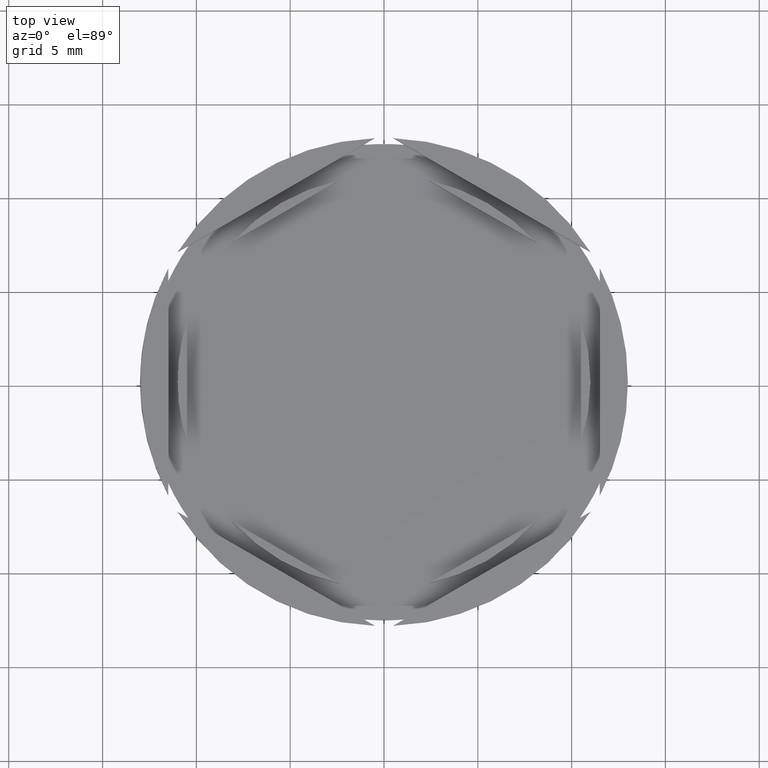
[diagram: clean part render]
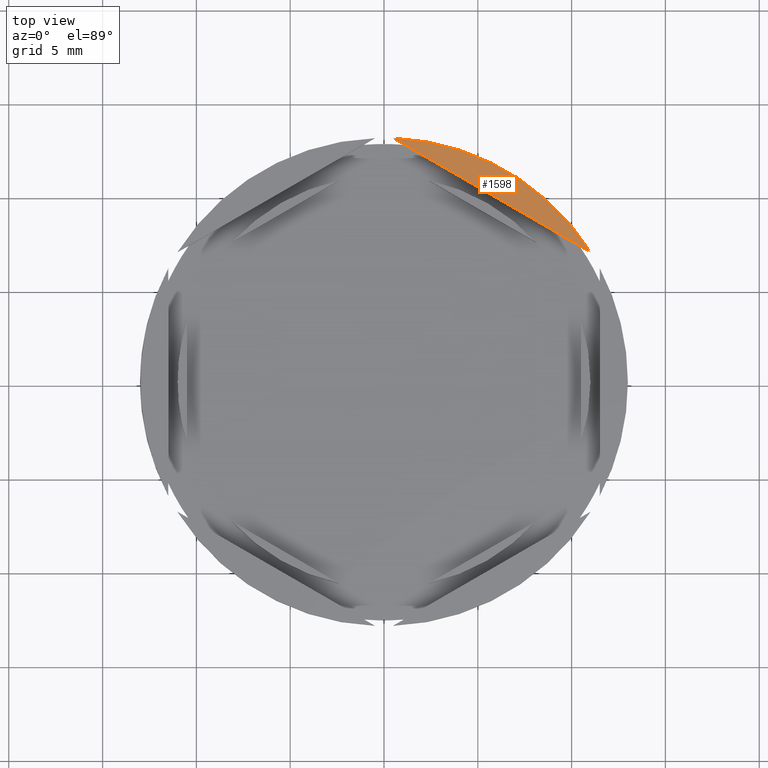
[diagram: same view with one face highlighted and labeled with its STEP entity id]
A machine part, top view. The second image highlights one B-rep face of the part: STEP entity #1598.
In plain terms, the highlighted planar face has unit normal (0, -0, 1).
Its self-contained STEP definition (entity closure, byte-faithful):
#259 = AXIS2_PLACEMENT_3D ( 'NONE', #1776, #2202, #1657 ) ;
#343 = EDGE_CURVE ( 'NONE', #1161, #1147, #1519, .T. ) ;
#418 = ORIENTED_EDGE ( 'NONE', *, *, #343, .T. ) ;
#903 = DIRECTION ( 'NONE',  ( 1.000000000000000000, 0.000000000000000000, 0.000000000000000000 ) ) ;
#1132 = EDGE_CURVE ( 'NONE', #1161, #1147, #1749, .T. ) ;
#1146 = VECTOR ( 'NONE', #2147, 1000.000000000000227 ) ;
#1147 = VERTEX_POINT ( 'NONE', #1587 ) ;
#1161 = VERTEX_POINT ( 'NONE', #2158 ) ;
#1294 = CARTESIAN_POINT ( 'NONE',  ( 0.000000000000000000, 0.000000000000000000, 0.000000000000000000 ) ) ;
#1405 = AXIS2_PLACEMENT_3D ( 'NONE', #1294, #1861, #903 ) ;
#1498 = FACE_OUTER_BOUND ( 'NONE', #2164, .T. ) ;
#1519 = CIRCLE ( 'NONE', #1405, 12.99999999999999822 ) ;
#1587 = CARTESIAN_POINT ( 'NONE',  ( 0.4999999999999908962, 12.99038105676657651, 0.000000000000000000 ) ) ;
#1598 = ADVANCED_FACE ( 'NONE', ( #1498 ), #2217, .T. ) ;
#1657 = DIRECTION ( 'NONE',  ( 1.000000000000000000, 0.000000000000000000, 0.000000000000000000 ) ) ;
#1749 = LINE ( 'NONE', #1970, #1146 ) ;
#1776 = CARTESIAN_POINT ( 'NONE',  ( 0.000000000000000000, 0.000000000000000000, 0.000000000000000000 ) ) ;
#1861 = DIRECTION ( 'NONE',  ( -0.000000000000000000, -0.000000000000000000, 1.000000000000000000 ) ) ;
#1970 = CARTESIAN_POINT ( 'NONE',  ( 11.50000000000000000, 6.639528095680693021, 0.000000000000000000 ) ) ;
#2147 = DIRECTION ( 'NONE',  ( -0.8660254037844387076, 0.4999999999999997780, 0.000000000000000000 ) ) ;
#2158 = CARTESIAN_POINT ( 'NONE',  ( 11.00000000000000000, 6.928203230275504332, 0.000000000000000000 ) ) ;
#2164 = EDGE_LOOP ( 'NONE', ( #2326, #418 ) ) ;
#2202 = DIRECTION ( 'NONE',  ( 0.000000000000000000, -0.000000000000000000, 1.000000000000000000 ) ) ;
#2217 = PLANE ( 'NONE',  #259 ) ;
#2326 = ORIENTED_EDGE ( 'NONE', *, *, #1132, .F. ) ;